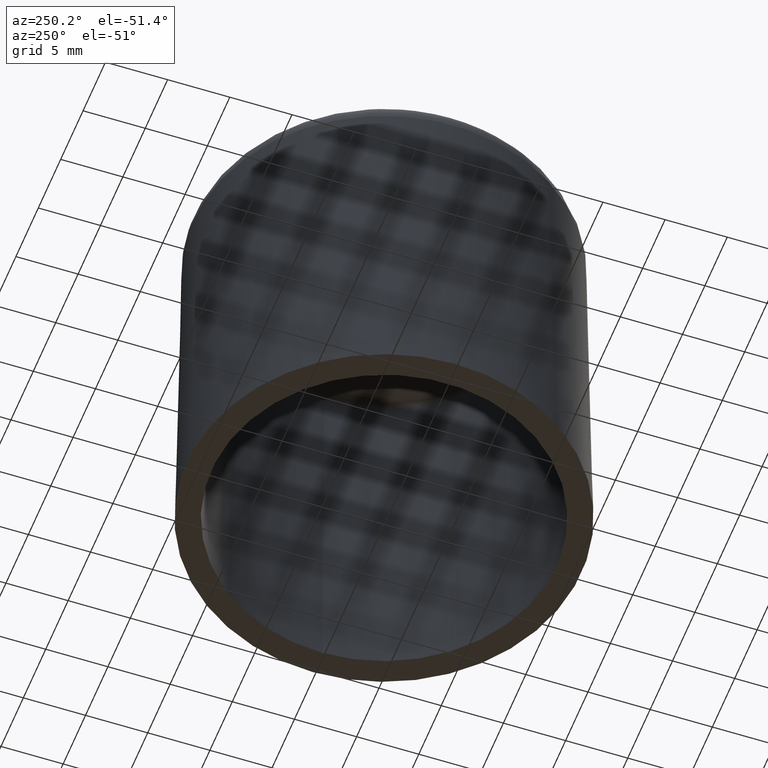
[diagram: clean part render]
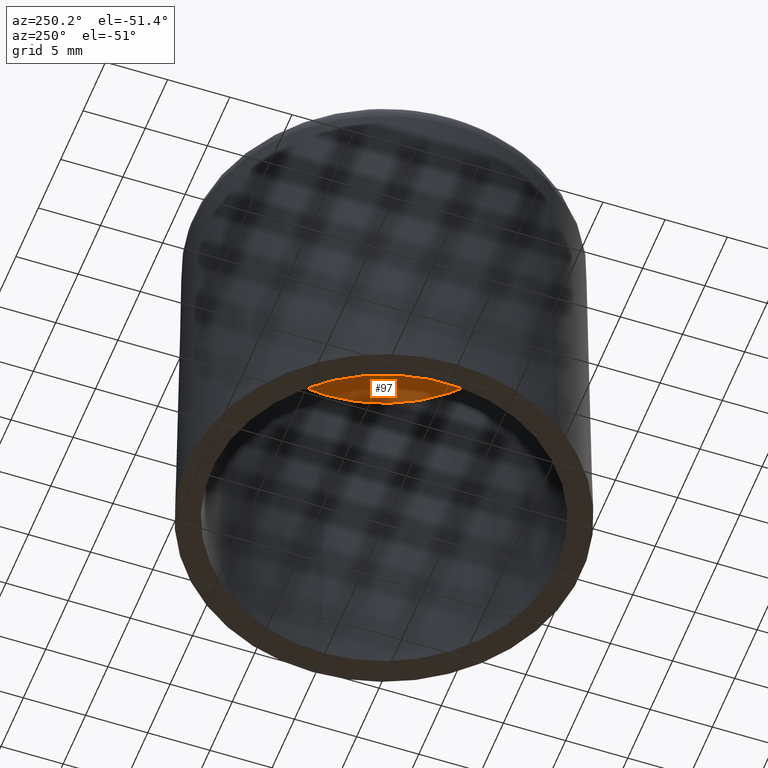
[diagram: same view with one face highlighted and labeled with its STEP entity id]
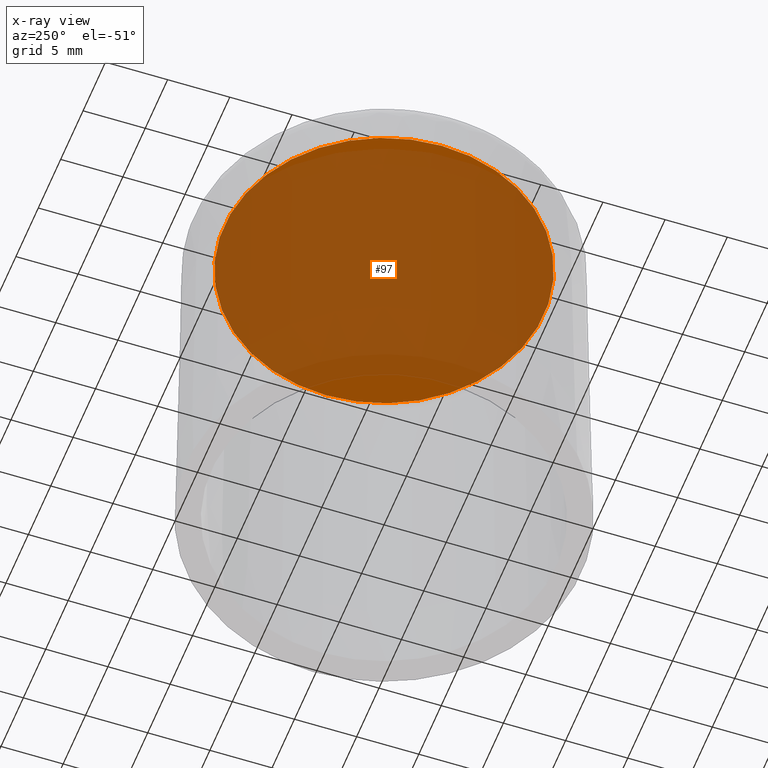
[diagram: x-ray of the same camera — body ghosted, the highlighted face saturated]
A machine part, auxiliary view. The second image highlights one B-rep face of the part: STEP entity #97.
The next image is the same camera in x-ray: the body ghosted, the highlighted face saturated — about 93% of this face is hidden behind the body in this view.
In plain terms, the highlighted planar face has unit normal (-0, 0, 1).
Its self-contained STEP definition (entity closure, byte-faithful):
#97 = ADVANCED_FACE( '', ( #199 ), #200, .F. );
#199 = FACE_OUTER_BOUND( '', #346, .T. );
#200 = PLANE( '', #347 );
#346 = EDGE_LOOP( '', ( #661 ) );
#347 = AXIS2_PLACEMENT_3D( '', #662, #663, #664 );
#661 = ORIENTED_EDGE( '', *, *, #1078, .F. );
#662 = CARTESIAN_POINT( '', ( -1.83690953073357E-015, 0.000000000000000, 30.0000000000000 ) );
#663 = DIRECTION( '', ( -6.12303176911189E-017, 0.000000000000000, 1.00000000000000 ) );
#664 = DIRECTION( '', ( 1.00000000000000, 0.000000000000000, 6.12303176911189E-017 ) );
#1078 = EDGE_CURVE( '', #1302, #1302, #1303, .T. );
#1302 = VERTEX_POINT( '', #1762 );
#1303 = CIRCLE( '', #1763, 12.8468253945189 );
#1762 = CARTESIAN_POINT( '', ( 12.8468253945189, 0.000000000000000, 30.0000000000000 ) );
#1763 = AXIS2_PLACEMENT_3D( '', #2006, #2007, #2008 );
#2006 = CARTESIAN_POINT( '', ( -1.83690953073357E-015, 0.000000000000000, 30.0000000000000 ) );
#2007 = DIRECTION( '', ( -6.12303176911189E-017, 0.000000000000000, 1.00000000000000 ) );
#2008 = DIRECTION( '', ( 1.00000000000000, 0.000000000000000, 6.12303176911189E-017 ) );